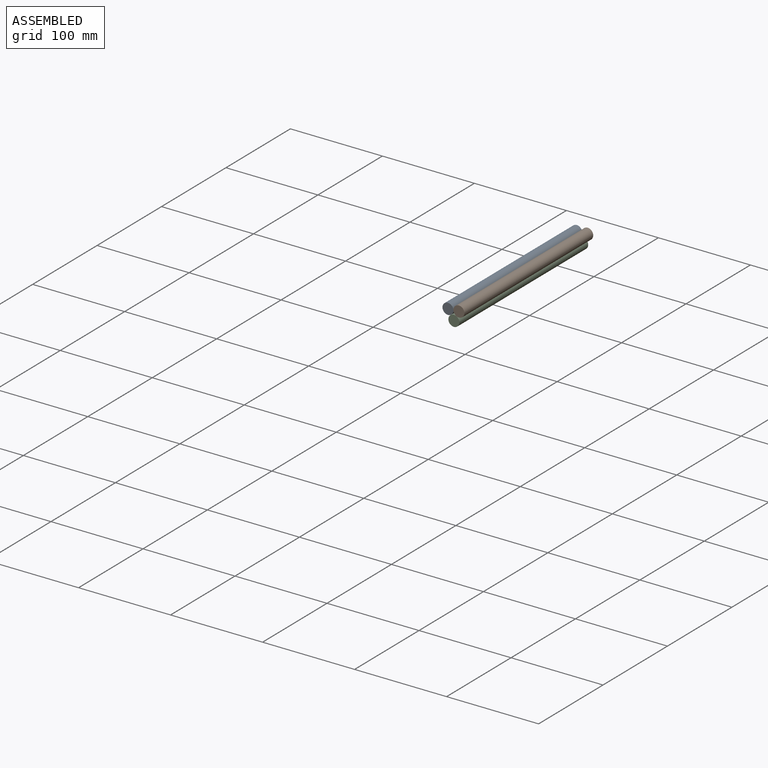
[diagram: assembled view]
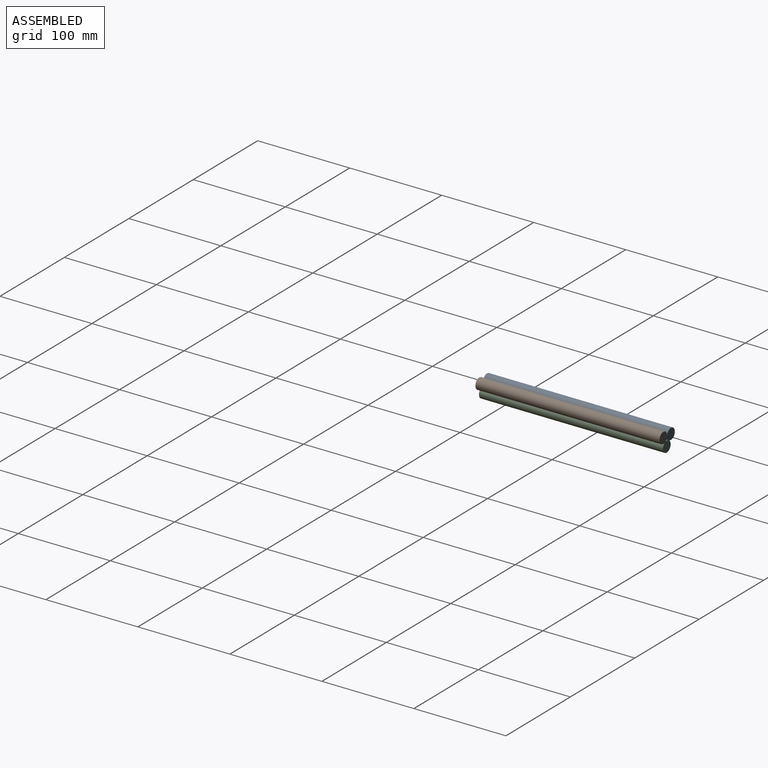
[diagram: assembled view, second angle]
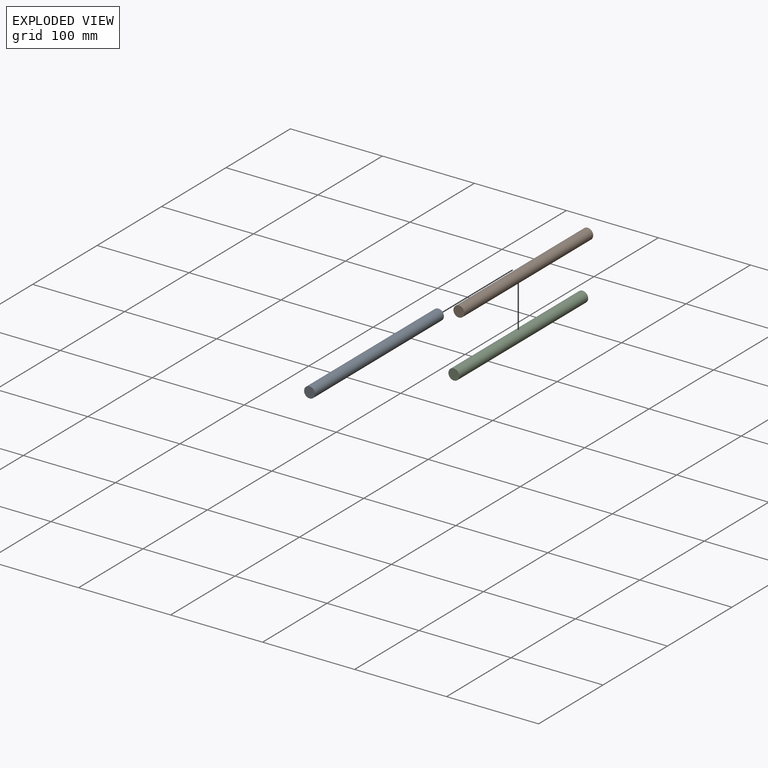
[diagram: exploded view]
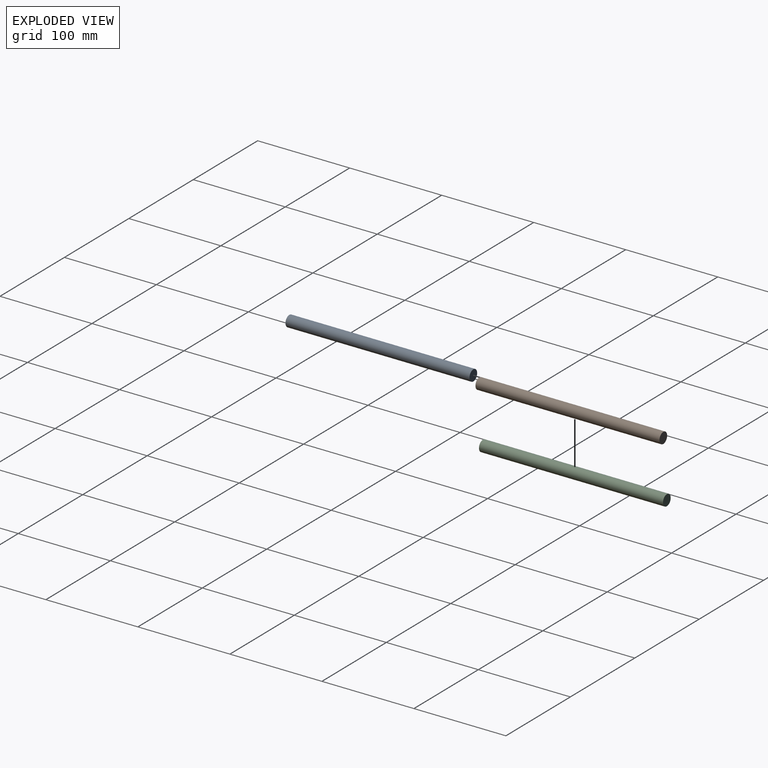
[diagram: exploded view, second angle]
ASSEMBLY  parts=3 mates=2
PART A: 3 faces, bbox 11.9x200x11.9 mm
  f0: cylinder r=5.95mm len=200mm, axis (0,1,0), area 7478.9mm2, adj f1,f2
  f1: plane 11.9x11.9mm, normal (0,-1,0), area 111.3mm2, adj f0
  f2: plane 11.9x11.9mm, normal (0,1,0), area 111.3mm2, adj f0
PART B: same geometry as A
PART C: same geometry as A
PLACE A rot(axis=(0,-1,0),38.1deg) t=(-79.29,43.81,-26.98)mm
PLACE B t=(-67.4,43.81,-26.42)mm fixed
PLACE C rot(axis=(-0.25,0,-0.97),180deg) t=(-72.87,-156.19,-37)mm
MATE planar C.f0 <-> B.f0  axis (0,1,0) through (-72.87,43.81,-37)mm
MATE planar C.f0 <-> A.f0  axis (0,-1,0) through (-72.87,-156.19,-37)mm
